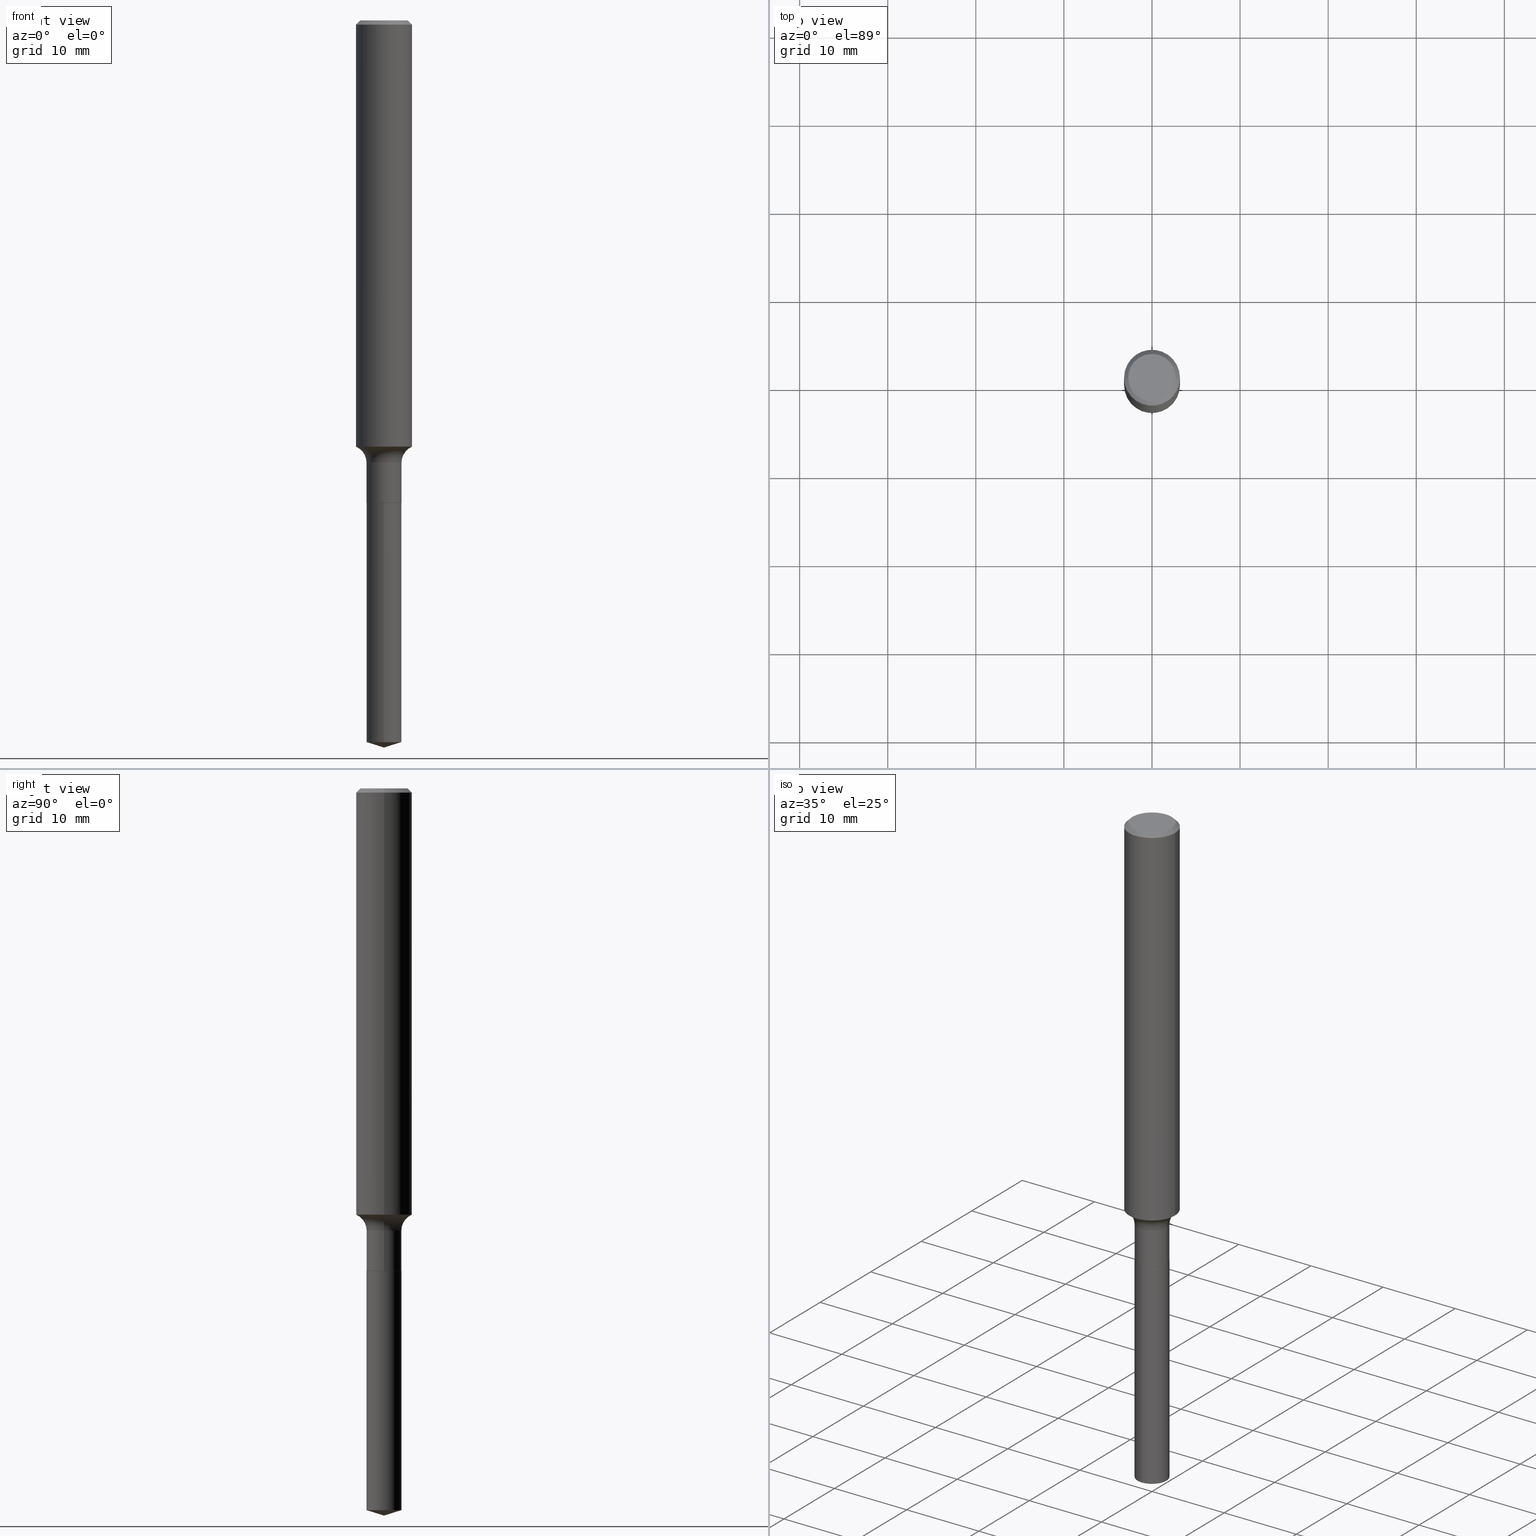
[diagram: canonical four-view strip — front | top / right | iso, engineering-drawing reading convention]
A machine part, canonical four-view strip (front | top / right | iso — engineering-drawing reading convention). The complete STEP part file that produces these views, byte-faithful:
ISO-10303-21;
HEADER;
FILE_DESCRIPTION (( 'STEP AP203' ),
    '1' );
FILE_NAME ('51585.STEP',
    '2024-04-19T13:03:35',
    ( '' ),
    ( '' ),
    'SwSTEP 2.0',
    'SolidWorks 2023',
    '' );
FILE_SCHEMA (( 'CONFIG_CONTROL_DESIGN' ));
ENDSEC;

DATA;
#1 = AXIS2_PLACEMENT_3D ( 'NONE', #400, #64, #135 ) ;
#2 = APPROVAL_PERSON_ORGANIZATION ( #399, #448, #442 ) ;
#3 = LINE ( 'NONE', #342, #293 ) ;
#4 = ORIENTED_EDGE ( 'NONE', *, *, #213, .T. ) ;
#5 = ADVANCED_FACE ( 'NONE', ( #488 ), #480, .T. ) ;
#6 = DIRECTION ( 'NONE',  ( -2.445358252114275326E-29, 3.491639658564965907E-15, 1.000000000000000000 ) ) ;
#7 = ORIENTED_EDGE ( 'NONE', *, *, #40, .F. ) ;
#8 = CIRCLE ( 'NONE', #402, 0.07809999999999997500 ) ;
#9 = DIMENSIONAL_EXPONENTS ( 1.000000000000000000, 0.000000000000000000, 0.000000000000000000, 0.000000000000000000, 0.000000000000000000, 0.000000000000000000, 0.000000000000000000 ) ;
#10 = ORIENTED_EDGE ( 'NONE', *, *, #440, .T. ) ;
#11 = CARTESIAN_POINT ( 'NONE',  ( 4.833713642305540959E-29, -6.901262014357360854E-15, -1.976599999999999913 ) ) ;
#12 = CARTESIAN_POINT ( 'NONE',  ( -0.07760000000000000231, -6.974301672689643584E-15, -2.156200000000000561 ) ) ;
#13 = ORIENTED_EDGE ( 'NONE', *, *, #23, .T. ) ;
#14 = DIRECTION ( 'NONE',  ( -1.000000000000000000, 6.982962677686266711E-15, 0.000000000000000000 ) ) ;
#15 = PLANE ( 'NONE',  #382 ) ;
#16 = DIRECTION ( 'NONE',  ( -2.445468806185136597E-29, 3.491481338843145583E-15, 1.000000000000000000 ) ) ;
#17 = EDGE_LOOP ( 'NONE', ( #275, #466, #384, #459 ) ) ;
#18 = CIRCLE ( 'NONE', #150, 0.1250000000000000000 ) ;
#19 = CC_DESIGN_SECURITY_CLASSIFICATION ( #109, ( #151 ) ) ;
#20 = DIRECTION ( 'NONE',  ( -0.7071067811864267805, 7.493145998869918709E-15, 0.7071067811866682540 ) ) ;
#21 = LINE ( 'NONE', #430, #108 ) ;
#22 = ORIENTED_EDGE ( 'NONE', *, *, #387, .F. ) ;
#23 = EDGE_CURVE ( 'NONE', #305, #56, #152, .T. ) ;
#24 = FACE_OUTER_BOUND ( 'NONE', #339, .T. ) ;
#25 = EDGE_CURVE ( 'NONE', #192, #204, #28, .T. ) ;
#26 = PERSON_AND_ORGANIZATION_ROLE ( 'creator' ) ;
#27 = CARTESIAN_POINT ( 'NONE',  ( -0.07809999999999997500, -6.658990291622127289E-15, -1.976599999999999913 ) ) ;
#28 = CIRCLE ( 'NONE', #287, 0.07809999999999997500 ) ;
#29 = AXIS2_PLACEMENT_3D ( 'NONE', #96, #244, #170 ) ;
#30 = CALENDAR_DATE ( 2024, 19, 4 ) ;
#31 = ORGANIZATION ( 'UNSPECIFIED', 'UNSPECIFIED', '' ) ;
#32 = ADVANCED_FACE ( 'NONE', ( #462 ), #80, .F. ) ;
#33 = PERSON_AND_ORGANIZATION_ROLE ( 'creator' ) ;
#34 = CARTESIAN_POINT ( 'NONE',  ( 5.272919839896393076E-29, -7.528332062813591757E-15, -2.156200000000000561 ) ) ;
#35 = COORDINATED_UNIVERSAL_TIME_OFFSET ( 5, 0, .BEHIND. ) ;
#36 = CC_DESIGN_PERSON_AND_ORGANIZATION_ASSIGNMENT ( #332, #292, ( #151 ) ) ;
#37 = PRODUCT ( '51585', '51585', '', ( #405 ) ) ;
#38 = DATE_AND_TIME ( #30, #137 ) ;
#39 = VECTOR ( 'NONE', #476, 39.37007874015748143 ) ;
#40 = EDGE_CURVE ( 'NONE', #317, #228, #450, .T. ) ;
#41 = EDGE_CURVE ( 'NONE', #53, #354, #419, .T. ) ;
#42 = ORIENTED_EDGE ( 'NONE', *, *, #341, .T. ) ;
#43 = CARTESIAN_POINT ( 'NONE',  ( 3.182012767528659158E-46, -4.543070911265533518E-32, -1.301187224094062675E-17 ) ) ;
#44 = ORIENTED_EDGE ( 'NONE', *, *, #86, .F. ) ;
#45 = FACE_OUTER_BOUND ( 'NONE', #366, .T. ) ;
#46 = ORIENTED_EDGE ( 'NONE', *, *, #145, .F. ) ;
#47 = DIRECTION ( 'NONE',  ( 1.000000000000000000, -6.982962677686262766E-15, 0.000000000000000000 ) ) ;
#48 = ORIENTED_EDGE ( 'NONE', *, *, #335, .T. ) ;
#49 = ORIENTED_EDGE ( 'NONE', *, *, #175, .T. ) ;
#50 = CARTESIAN_POINT ( 'NONE',  ( 7.947895253310916415E-29, -1.134714615236776256E-14, -3.250000000000000000 ) ) ;
#51 = EDGE_CURVE ( 'NONE', #381, #456, #3, .T. ) ;
#52 = DIRECTION ( 'NONE',  ( -6.982962677686265133E-15, -1.000000000000000000, 0.000000000000000000 ) ) ;
#53 = VERTEX_POINT ( 'NONE', #374 ) ;
#54 = APPROVAL ( #71, 'UNSPECIFIED' ) ;
#55 = DIRECTION ( 'NONE',  ( -2.445358252114275326E-29, 3.491639658564965907E-15, 1.000000000000000000 ) ) ;
#56 = VERTEX_POINT ( 'NONE', #115 ) ;
#57 = DIRECTION ( 'NONE',  ( 1.000000000000000000, -6.982962677686260400E-15, 0.000000000000000000 ) ) ;
#58 = DIRECTION ( 'NONE',  ( 1.000000000000000000, -6.982962677686262766E-15, 0.000000000000000000 ) ) ;
#59 = ORIENTED_EDGE ( 'NONE', *, *, #25, .T. ) ;
#60 = CIRCLE ( 'NONE', #445, 0.07810000000000000275 ) ;
#61 = TOROIDAL_SURFACE ( 'NONE', #176, 0.1561000000000000165, 0.07800000000000006928 ) ;
#62 = FACE_OUTER_BOUND ( 'NONE', #343, .T. ) ;
#63 = ADVANCED_FACE ( 'NONE', ( #276 ), #237, .F. ) ;
#64 = DIRECTION ( 'NONE',  ( -6.982962677686266711E-15, -1.000000000000000000, 3.491481338843145583E-15 ) ) ;
#65 = CARTESIAN_POINT ( 'NONE',  ( -0.1250000000000001388, 8.881784197001262184E-16, -6.148668862818638533E-30 ) ) ;
#66 = DIRECTION ( 'NONE',  ( -6.982962677686265133E-15, -1.000000000000000000, 3.497884755011860410E-15 ) ) ;
#67 = PERSON_AND_ORGANIZATION ( #261, #31 ) ;
#68 = DIRECTION ( 'NONE',  ( 1.000000000000000000, -6.982962677686266711E-15, 4.876176775795935793E-29 ) ) ;
#69 = CLOSED_SHELL ( 'NONE', ( #348, #121, #420, #63, #368, #75, #472, #233, #225, #32, #117, #485 ) ) ;
#70 = CALENDAR_DATE ( 2024, 19, 4 ) ;
#71 = APPROVAL_STATUS ( 'not_yet_approved' ) ;
#72 = APPROVAL_DATE_TIME ( #259, #448 ) ;
#73 = DIRECTION ( 'NONE',  ( -2.445468806185136597E-29, 3.491481338843145583E-15, 1.000000000000000000 ) ) ;
#74 = PERSON_AND_ORGANIZATION ( #261, #31 ) ;
#75 = ADVANCED_FACE ( 'NONE', ( #45 ), #344, .T. ) ;
#76 = CIRCLE ( 'NONE', #187, 0.07810000000000000275 ) ;
#77 = CC_DESIGN_PERSON_AND_ORGANIZATION_ASSIGNMENT ( #221, #106, ( #37 ) ) ;
#78 = DIRECTION ( 'NONE',  ( -6.659769872151632089E-15, -0.9537169507482267106, 0.3007057995042733411 ) ) ;
#79 = DIRECTION ( 'NONE',  ( -2.445468806185136597E-29, 3.491481338843145583E-15, 1.000000000000000000 ) ) ;
#80 = PLANE ( 'NONE',  #308 ) ;
#81 = AXIS2_PLACEMENT_3D ( 'NONE', #304, #453, #190 ) ;
#82 = APPROVAL_PERSON_ORGANIZATION ( #256, #389, #367 ) ;
#83 = CARTESIAN_POINT ( 'NONE',  ( 4.658785000533512367E-29, -6.651510274800731204E-15, -1.905068258793735092 ) ) ;
#84 = ORIENTED_EDGE ( 'NONE', *, *, #437, .F. ) ;
#85 = ORIENTED_EDGE ( 'NONE', *, *, #379, .T. ) ;
#86 = EDGE_CURVE ( 'NONE', #53, #381, #410, .T. ) ;
#87 = CARTESIAN_POINT ( 'NONE',  ( 5.272919839896391955E-29, -7.528332062813591757E-15, -2.156200000000000561 ) ) ;
#88 = CARTESIAN_POINT ( 'NONE',  ( 0.000000000000000000, 0.000000000000000000, 0.000000000000000000 ) ) ;
#89 = VECTOR ( 'NONE', #458, 39.37007874015748143 ) ;
#90 = CC_DESIGN_PERSON_AND_ORGANIZATION_ASSIGNMENT ( #365, #26, ( #206 ) ) ;
#91 = VERTEX_POINT ( 'NONE', #273 ) ;
#92 = DIRECTION ( 'NONE',  ( 1.000000000000000000, -6.982962677686265922E-15, 4.876176775795935793E-29 ) ) ;
#93 = DIRECTION ( 'NONE',  ( -2.445468806185136597E-29, 3.491481338843145583E-15, 1.000000000000000000 ) ) ;
#94 = ORIENTED_EDGE ( 'NONE', *, *, #51, .F. ) ;
#95 = LINE ( 'NONE', #475, #208 ) ;
#96 = CARTESIAN_POINT ( 'NONE',  ( 7.887436151578645056E-29, -1.126150646944370248E-14, -3.225375164588551780 ) ) ;
#97 = EDGE_CURVE ( 'NONE', #91, #451, #141, .T. ) ;
#98 = ORIENTED_EDGE ( 'NONE', *, *, #175, .F. ) ;
#99 = CARTESIAN_POINT ( 'NONE',  ( 4.585254011597165626E-31, -6.546527510330947764E-17, -0.01875000000000014155 ) ) ;
#100 = CC_DESIGN_PERSON_AND_ORGANIZATION_ASSIGNMENT ( #67, #251, ( #109 ) ) ;
#101 = CARTESIAN_POINT ( 'NONE',  ( 5.271697105493300275E-29, -7.526586322144169465E-15, -2.155700000000000394 ) ) ;
#102 = CARTESIAN_POINT ( 'NONE',  ( -5.453693851272445827E-16, -0.07810000000000752451, -2.156200000000000117 ) ) ;
#103 = AXIS2_PLACEMENT_3D ( 'NONE', #239, #155, #118 ) ;
#104 = AXIS2_PLACEMENT_3D ( 'NONE', #361, #464, #57 ) ;
#105 = CARTESIAN_POINT ( 'NONE',  ( 5.549338766287173480E-16, 0.07809999999998876175, -3.225375164588551780 ) ) ;
#106 = PERSON_AND_ORGANIZATION_ROLE ( 'design_owner' ) ;
#107 = DIRECTION ( 'NONE',  ( -2.445358252114275326E-29, 3.491639658564965907E-15, 1.000000000000000000 ) ) ;
#108 = VECTOR ( 'NONE', #395, 39.37007874015748143 ) ;
#109 = SECURITY_CLASSIFICATION ( '', '', #329 ) ;
#110 = EDGE_CURVE ( 'NONE', #378, #204, #345, .T. ) ;
#111 = EDGE_LOOP ( 'NONE', ( #269, #164, #373, #85 ) ) ;
#112 = APPROVAL_DATE_TIME ( #297, #389 ) ;
#113 = CIRCLE ( 'NONE', #435, 0.07810000000000000275 ) ;
#114 = EDGE_LOOP ( 'NONE', ( #299, #153, #243 ) ) ;
#115 = CARTESIAN_POINT ( 'NONE',  ( -5.453693851272187475E-16, -0.07810000000001129927, -3.225375164588551780 ) ) ;
#116 = ORIENTED_EDGE ( 'NONE', *, *, #25, .F. ) ;
#117 = ADVANCED_FACE ( 'NONE', ( #491 ), #252, .F. ) ;
#118 = DIRECTION ( 'NONE',  ( 1.000000000000000000, -6.982962677686266711E-15, 4.877714189860772023E-29 ) ) ;
#119 = VECTOR ( 'NONE', #20, 39.37007874015748143 ) ;
#120 = EDGE_LOOP ( 'NONE', ( #321, #474, #330, #415 ) ) ;
#121 = ADVANCED_FACE ( 'NONE', ( #62 ), #270, .T. ) ;
#122 = DIRECTION ( 'NONE',  ( 1.000000000000000000, -6.982962677686267499E-15, 4.876176775795936353E-29 ) ) ;
#123 = DIRECTION ( 'NONE',  ( 1.000000000000000000, -6.982962677686267499E-15, 4.876176775795936353E-29 ) ) ;
#124 = ORIENTED_EDGE ( 'NONE', *, *, #314, .T. ) ;
#125 =( NAMED_UNIT ( * ) PLANE_ANGLE_UNIT ( ) SI_UNIT ( $, .RADIAN. ) );
#126 = CIRCLE ( 'NONE', #1, 0.07800000000000006928 ) ;
#127 = DIRECTION ( 'NONE',  ( -2.445468806185136597E-29, 3.491481338843145583E-15, 1.000000000000000000 ) ) ;
#128 = ORIENTED_EDGE ( 'NONE', *, *, #355, .T. ) ;
#129 = CARTESIAN_POINT ( 'NONE',  ( -0.1250000000000000000, -2.470309355251892181E-15, -0.01875000000000014155 ) ) ;
#130 = DIRECTION ( 'NONE',  ( -2.445358252114275326E-29, 3.491639658564965907E-15, 1.000000000000000000 ) ) ;
#131 = ORIENTED_EDGE ( 'NONE', *, *, #303, .T. ) ;
#132 = CARTESIAN_POINT ( 'NONE',  ( 5.272919839896391955E-29, -7.528332062813591757E-15, -2.156200000000000561 ) ) ;
#133 = CARTESIAN_POINT ( 'NONE',  ( -5.453693851272445827E-16, -0.07810000000000752451, -2.156200000000000117 ) ) ;
#134 =( LENGTH_UNIT ( ) NAMED_UNIT ( * ) SI_UNIT ( $, .METRE. ) );
#135 = DIRECTION ( 'NONE',  ( 1.000000000000000000, -6.982962677686264344E-15, 0.000000000000000000 ) ) ;
#136 = AXIS2_PLACEMENT_3D ( 'NONE', #409, #249, #443 ) ;
#137 = LOCAL_TIME ( 9, 3, 35.00000000000000000, #218 ) ;
#138 = CARTESIAN_POINT ( 'NONE',  ( 5.272919839896391955E-29, -7.528332062813591757E-15, -2.156200000000000561 ) ) ;
#139 = COORDINATED_UNIVERSAL_TIME_OFFSET ( 5, 0, .BEHIND. ) ;
#140 = COORDINATED_UNIVERSAL_TIME_OFFSET ( 5, 0, .BEHIND. ) ;
#141 = CIRCLE ( 'NONE', #369, 0.1250000000000002776 ) ;
#142 = AXIS2_PLACEMENT_3D ( 'NONE', #359, #421, #238 ) ;
#143 = APPROVAL_ROLE ( '' ) ;
#144 = MANIFOLD_SOLID_BREP ( 'Body-Move/Copy2[1]', #215 ) ;
#145 = EDGE_CURVE ( 'NONE', #56, #274, #171, .T. ) ;
#146 = COORDINATED_UNIVERSAL_TIME_OFFSET ( 5, 0, .BEHIND. ) ;
#147 = DIRECTION ( 'NONE',  ( -2.445468806185136597E-29, 3.491481338843145583E-15, 1.000000000000000000 ) ) ;
#148 = ORIENTED_EDGE ( 'NONE', *, *, #97, .F. ) ;
#149 = ORIENTED_EDGE ( 'NONE', *, *, #110, .T. ) ;
#150 = AXIS2_PLACEMENT_3D ( 'NONE', #191, #79, #377 ) ;
#151 = PRODUCT_DEFINITION_FORMATION_WITH_SPECIFIED_SOURCE ( 'ANY', '', #37, .NOT_KNOWN. ) ;
#152 = LINE ( 'NONE', #160, #338 ) ;
#153 = ORIENTED_EDGE ( 'NONE', *, *, #426, .T. ) ;
#154 = CARTESIAN_POINT ( 'NONE',  ( 0.07810000000000000275, -8.071955707271467690E-15, -2.155700000000000394 ) ) ;
#155 = DIRECTION ( 'NONE',  ( -2.445468806185136597E-29, 3.491481338843145583E-15, 1.000000000000000000 ) ) ;
#156 = ORIENTED_EDGE ( 'NONE', *, *, #86, .T. ) ;
#157 =( GEOMETRIC_REPRESENTATION_CONTEXT ( 3 ) GLOBAL_UNCERTAINTY_ASSIGNED_CONTEXT ( ( #396 ) ) GLOBAL_UNIT_ASSIGNED_CONTEXT ( ( #429, #125, #385 ) ) REPRESENTATION_CONTEXT ( 'NONE', 'WORKASPACE' ) );
#158 = ORIENTED_EDGE ( 'NONE', *, *, #165, .T. ) ;
#159 = EDGE_CURVE ( 'NONE', #210, #265, #207, .T. ) ;
#160 = CARTESIAN_POINT ( 'NONE',  ( 7.947414319371396911E-29, -1.134782889033613979E-14, -3.250000000000000000 ) ) ;
#161 = ORIENTED_EDGE ( 'NONE', *, *, #220, .F. ) ;
#162 = DIRECTION ( 'NONE',  ( -2.445468806185136597E-29, 3.491481338843145583E-15, 1.000000000000000000 ) ) ;
#163 = DIRECTION ( 'NONE',  ( -2.445358252114275326E-29, 3.491639658564965907E-15, 1.000000000000000000 ) ) ;
#164 = ORIENTED_EDGE ( 'NONE', *, *, #404, .F. ) ;
#165 = EDGE_CURVE ( 'NONE', #56, #317, #60, .T. ) ;
#166 = FACE_OUTER_BOUND ( 'NONE', #17, .T. ) ;
#167 = AXIS2_PLACEMENT_3D ( 'NONE', #232, #163, #289 ) ;
#168 = FACE_OUTER_BOUND ( 'NONE', #194, .T. ) ;
#169 = LENGTH_MEASURE_WITH_UNIT ( LENGTH_MEASURE( 0.02539999999999999897 ), #134 );
#170 = DIRECTION ( 'NONE',  ( -6.982962677686265133E-15, -1.000000000000000000, 0.000000000000000000 ) ) ;
#171 = LINE ( 'NONE', #133, #260 ) ;
#172 = CARTESIAN_POINT ( 'NONE',  ( 4.585254011597165626E-31, -6.546527510330947764E-17, -0.01875000000000014155 ) ) ;
#173 = SHAPE_DEFINITION_REPRESENTATION ( #331, #460 ) ;
#174 = AXIS2_PLACEMENT_3D ( 'NONE', #34, #73, #198 ) ;
#175 = EDGE_CURVE ( 'NONE', #451, #204, #455, .T. ) ;
#176 = AXIS2_PLACEMENT_3D ( 'NONE', #11, #162, #390 ) ;
#177 = CC_DESIGN_APPROVAL ( #54, ( #206 ) ) ;
#178 = APPLICATION_PROTOCOL_DEFINITION ( 'international standard', 'config_control_design', 1994, #352 ) ;
#179 = CYLINDRICAL_SURFACE ( 'NONE', #340, 0.07809999999999997500 ) ;
#180 = PERSON_AND_ORGANIZATION ( #261, #31 ) ;
#181 = ADVANCED_FACE ( 'NONE', ( #296 ), #408, .T. ) ;
#182 = CC_DESIGN_DATE_AND_TIME_ASSIGNMENT ( #401, #295, ( #109 ) ) ;
#183 = AXIS2_PLACEMENT_3D ( 'NONE', #99, #202, #14 ) ;
#184 = CONICAL_SURFACE ( 'NONE', #278, 124.8659371009152892, 1.265363707695892126 ) ;
#185 = DATE_TIME_ROLE ( 'creation_date' ) ;
#186 = ORIENTED_EDGE ( 'NONE', *, *, #213, .F. ) ;
#187 = AXIS2_PLACEMENT_3D ( 'NONE', #138, #55, #398 ) ;
#188 = EDGE_LOOP ( 'NONE', ( #7, #48, #351, #358 ) ) ;
#189 = DIRECTION ( 'NONE',  ( 1.000000000000000000, -6.982962677686266711E-15, 4.877714189860772023E-29 ) ) ;
#190 = DIRECTION ( 'NONE',  ( 1.000000000000000000, -6.982962677686267499E-15, 4.883557194083113462E-29 ) ) ;
#191 = CARTESIAN_POINT ( 'NONE',  ( 4.585254011597165626E-31, -6.546527510330947764E-17, -0.01875000000000014155 ) ) ;
#192 = VERTEX_POINT ( 'NONE', #391 ) ;
#193 = DIRECTION ( 'NONE',  ( -2.445468806185136597E-29, 3.491481338843145583E-15, 1.000000000000000000 ) ) ;
#194 = EDGE_LOOP ( 'NONE', ( #226, #13, #346 ) ) ;
#195 = DIRECTION ( 'NONE',  ( 1.000000000000000000, -6.982962677686260400E-15, 0.000000000000000000 ) ) ;
#196 = DIRECTION ( 'NONE',  ( -2.445468806185136597E-29, 3.491481338843145583E-15, 1.000000000000000000 ) ) ;
#197 = AXIS2_PLACEMENT_3D ( 'NONE', #425, #432, #92 ) ;
#198 = DIRECTION ( 'NONE',  ( 1.000000000000000000, -6.982962677686260400E-15, 0.000000000000000000 ) ) ;
#199 = ORIENTED_EDGE ( 'NONE', *, *, #322, .F. ) ;
#200 = LINE ( 'NONE', #65, #487 ) ;
#201 = EDGE_LOOP ( 'NONE', ( #98, #148, #4, #59 ) ) ;
#202 = DIRECTION ( 'NONE',  ( 2.445468806185136597E-29, -3.491481338843145583E-15, -1.000000000000000000 ) ) ;
#203 = CARTESIAN_POINT ( 'NONE',  ( 4.658785000533512367E-29, -6.651510274800731204E-15, -1.905068258793735092 ) ) ;
#204 = VERTEX_POINT ( 'NONE', #27 ) ;
#205 = DIRECTION ( 'NONE',  ( -2.445468806185136597E-29, 3.491481338843145583E-15, 1.000000000000000000 ) ) ;
#206 = PRODUCT_DEFINITION ( 'UNKNOWN', '', #151, #467 ) ;
#207 = CIRCLE ( 'NONE', #174, 0.07760000000000000231 ) ;
#208 = VECTOR ( 'NONE', #319, 39.37007874015748143 ) ;
#209 = CARTESIAN_POINT ( 'NONE',  ( 7.947414319371394669E-29, -1.134782889033613821E-14, -3.250000000000000000 ) ) ;
#210 = VERTEX_POINT ( 'NONE', #353 ) ;
#211 = FACE_OUTER_BOUND ( 'NONE', #111, .T. ) ;
#212 = LINE ( 'NONE', #50, #418 ) ;
#213 = EDGE_CURVE ( 'NONE', #91, #192, #126, .T. ) ;
#214 = DIRECTION ( 'NONE',  ( 1.000000000000000000, -6.982962677686266711E-15, 0.000000000000000000 ) ) ;
#215 = CLOSED_SHELL ( 'NONE', ( #181, #5, #298, #253, #406 ) ) ;
#216 = FACE_OUTER_BOUND ( 'NONE', #188, .T. ) ;
#217 = CIRCLE ( 'NONE', #469, 0.07760000000000000231 ) ;
#218 = COORDINATED_UNIVERSAL_TIME_OFFSET ( 5, 0, .BEHIND. ) ;
#219 = DIRECTION ( 'NONE',  ( 1.000000000000000000, -6.982962677686266711E-15, 0.000000000000000000 ) ) ;
#220 = EDGE_CURVE ( 'NONE', #451, #91, #481, .T. ) ;
#221 = PERSON_AND_ORGANIZATION ( #261, #31 ) ;
#222 = FACE_OUTER_BOUND ( 'NONE', #392, .T. ) ;
#223 = APPROVAL_DATE_TIME ( #38, #54 ) ;
#224 = LOCAL_TIME ( 9, 3, 35.00000000000000000, #139 ) ;
#225 = ADVANCED_FACE ( 'NONE', ( #211 ), #424, .T. ) ;
#226 = ORIENTED_EDGE ( 'NONE', *, *, #426, .F. ) ;
#227 = CARTESIAN_POINT ( 'NONE',  ( 4.833713642305540959E-29, -6.901262014357360854E-15, -1.976599999999999913 ) ) ;
#228 = VERTEX_POINT ( 'NONE', #291 ) ;
#229 = CIRCLE ( 'NONE', #364, 0.1250000000000000000 ) ;
#230 = CARTESIAN_POINT ( 'NONE',  ( 5.549338766286909212E-16, 0.07809999999999246711, -2.156200000000000561 ) ) ;
#231 = CARTESIAN_POINT ( 'NONE',  ( -0.07810000000000000275, -6.658990291622127289E-15, -2.155700000000000394 ) ) ;
#232 = CARTESIAN_POINT ( 'NONE',  ( 5.272919839896391955E-29, -7.528332062813591757E-15, -2.156200000000000561 ) ) ;
#233 = ADVANCED_FACE ( 'NONE', ( #436 ), #438, .T. ) ;
#234 = DIRECTION ( 'NONE',  ( -2.445468806185136597E-29, 3.491481338843145583E-15, 1.000000000000000000 ) ) ;
#235 = ORIENTED_EDGE ( 'NONE', *, *, #268, .F. ) ;
#236 = DIRECTION ( 'NONE',  ( 2.438088387897960049E-29, -3.491481338843145188E-15, -1.000000000000000000 ) ) ;
#237 = TOROIDAL_SURFACE ( 'NONE', #81, 0.1561000000000000165, 0.07800000000000006928 ) ;
#238 = DIRECTION ( 'NONE',  ( 1.000000000000000000, -6.982962677686266711E-15, 4.876176775795935793E-29 ) ) ;
#239 = CARTESIAN_POINT ( 'NONE',  ( 6.364025535057318316E-46, -9.086141822531067035E-32, -2.602374448188125350E-17 ) ) ;
#240 = AXIS2_PLACEMENT_3D ( 'NONE', #465, #127, #68 ) ;
#241 = CIRCLE ( 'NONE', #294, 0.1062499999999999972 ) ;
#242 = CARTESIAN_POINT ( 'NONE',  ( -8.832629423757390012E-28, 1.261186407686073387E-13, 36.12007874015748143 ) ) ;
#243 = ORIENTED_EDGE ( 'NONE', *, *, #165, .F. ) ;
#244 = DIRECTION ( 'NONE',  ( -2.445358252114275326E-29, 3.491639658564965907E-15, 1.000000000000000000 ) ) ;
#245 = ORIENTED_EDGE ( 'NONE', *, *, #40, .T. ) ;
#246 = CARTESIAN_POINT ( 'NONE',  ( -0.1250000000000003331, -5.763331855100603605E-15, -1.905068258793735092 ) ) ;
#247 = CARTESIAN_POINT ( 'NONE',  ( 0.1250000000000000000, -9.383356098140928781E-16, -0.01875000000000014155 ) ) ;
#248 = DIRECTION ( 'NONE',  ( -2.445468806185136877E-29, 3.491481338843145188E-15, 1.000000000000000000 ) ) ;
#249 = DIRECTION ( 'NONE',  ( 0.000000000000000000, 0.000000000000000000, 1.000000000000000000 ) ) ;
#250 = DIRECTION ( 'NONE',  ( -2.445358252114275326E-29, 3.491639658564965907E-15, 1.000000000000000000 ) ) ;
#251 = PERSON_AND_ORGANIZATION_ROLE ( 'classification_officer' ) ;
#252 = PLANE ( 'NONE',  #197 ) ;
#253 = ADVANCED_FACE ( 'NONE', ( #216 ), #427, .T. ) ;
#254 = AXIS2_PLACEMENT_3D ( 'NONE', #203, #16, #58 ) ;
#255 = APPROVAL_STATUS ( 'not_yet_approved' ) ;
#256 = PERSON_AND_ORGANIZATION ( #261, #31 ) ;
#257 = ORIENTED_EDGE ( 'NONE', *, *, #159, .F. ) ;
#258 = CARTESIAN_POINT ( 'NONE',  ( -0.1561000000000000165, -5.792104803835844346E-15, -1.976599999999999913 ) ) ;
#259 = DATE_AND_TIME ( #70, #272 ) ;
#260 = VECTOR ( 'NONE', #397, 39.37007874015748143 ) ;
#261 = PERSON ( 'UNSPECIFIED', 'UNSPECIFIED', 'UNSPECIFIED', ('UNSPECIFIED'), ('UNSPECIFIED'), ('UNSPECIFIED') ) ;
#262 = AXIS2_PLACEMENT_3D ( 'NONE', #258, #350, #490 ) ;
#263 = APPLICATION_CONTEXT ( 'configuration controlled 3d designs of mechanical parts and assemblies' ) ;
#264 = ORIENTED_EDGE ( 'NONE', *, *, #379, .F. ) ;
#265 = VERTEX_POINT ( 'NONE', #12 ) ;
#266 = CARTESIAN_POINT ( 'NONE',  ( 6.364025535057318316E-46, -9.086141822531067035E-32, -2.602374448188125350E-17 ) ) ;
#267 = DIRECTION ( 'NONE',  ( -2.445358252114275326E-29, 3.491639658564966301E-15, 1.000000000000000000 ) ) ;
#268 = EDGE_CURVE ( 'NONE', #274, #228, #113, .T. ) ;
#269 = ORIENTED_EDGE ( 'NONE', *, *, #41, .F. ) ;
#270 = CONICAL_SURFACE ( 'NONE', #183, 0.1250000000000000000, 0.7853981633974453924 ) ;
#271 = AXIS2_PLACEMENT_3D ( 'NONE', #320, #283, #214 ) ;
#272 = LOCAL_TIME ( 9, 3, 35.00000000000000000, #35 ) ;
#273 = CARTESIAN_POINT ( 'NONE',  ( 0.1250000000000003331, -7.524380609511516120E-15, -1.905068258793735092 ) ) ;
#274 = VERTEX_POINT ( 'NONE', #102 ) ;
#275 = ORIENTED_EDGE ( 'NONE', *, *, #97, .T. ) ;
#276 = FACE_OUTER_BOUND ( 'NONE', #337, .T. ) ;
#277 = ORIENTED_EDGE ( 'NONE', *, *, #404, .T. ) ;
#278 = AXIS2_PLACEMENT_3D ( 'NONE', #242, #107, #386 ) ;
#279 = LOCAL_TIME ( 9, 3, 35.00000000000000000, #146 ) ;
#280 = DIRECTION ( 'NONE',  ( 1.000000000000000000, -6.982962677686269077E-15, 0.000000000000000000 ) ) ;
#281 = ORIENTED_EDGE ( 'NONE', *, *, #220, .T. ) ;
#282 = CARTESIAN_POINT ( 'NONE',  ( -0.07760000000000000231, -6.976950899863754785E-15, -2.156200000000000561 ) ) ;
#283 = DIRECTION ( 'NONE',  ( -2.445468806185136597E-29, 3.491481338843145583E-15, 1.000000000000000000 ) ) ;
#284 = ORIENTED_EDGE ( 'NONE', *, *, #110, .F. ) ;
#285 = DIRECTION ( 'NONE',  ( -2.445468806185136597E-29, 3.491481338843145583E-15, 1.000000000000000000 ) ) ;
#286 = EDGE_CURVE ( 'NONE', #204, #192, #8, .T. ) ;
#287 = AXIS2_PLACEMENT_3D ( 'NONE', #227, #193, #416 ) ;
#288 = AXIS2_PLACEMENT_3D ( 'NONE', #101, #205, #471 ) ;
#289 = DIRECTION ( 'NONE',  ( -6.982962677686265133E-15, -1.000000000000000000, 3.497884755011860410E-15 ) ) ;
#290 = CALENDAR_DATE ( 2024, 19, 4 ) ;
#291 = CARTESIAN_POINT ( 'NONE',  ( 5.549338766287172494E-16, 0.07809999999999246711, -2.156200000000000561 ) ) ;
#292 = PERSON_AND_ORGANIZATION_ROLE ( 'design_supplier' ) ;
#293 = VECTOR ( 'NONE', #376, 39.37007874015748143 ) ;
#294 = AXIS2_PLACEMENT_3D ( 'NONE', #266, #414, #189 ) ;
#295 = DATE_TIME_ROLE ( 'classification_date' ) ;
#296 = FACE_OUTER_BOUND ( 'NONE', #375, .T. ) ;
#297 = DATE_AND_TIME ( #334, #279 ) ;
#298 = ADVANCED_FACE ( 'NONE', ( #168 ), #184, .T. ) ;
#299 = ORIENTED_EDGE ( 'NONE', *, *, #23, .F. ) ;
#300 = PRODUCT_RELATED_PRODUCT_CATEGORY ( 'detail', '', ( #37 ) ) ;
#301 = VECTOR ( 'NONE', #422, 39.37007874015748143 ) ;
#302 = CIRCLE ( 'NONE', #29, 0.07810000000000000275 ) ;
#303 = EDGE_CURVE ( 'NONE', #228, #274, #76, .T. ) ;
#304 = CARTESIAN_POINT ( 'NONE',  ( 4.833713642305540959E-29, -6.901262014357360854E-15, -1.976599999999999913 ) ) ;
#305 = VERTEX_POINT ( 'NONE', #209 ) ;
#306 = CARTESIAN_POINT ( 'NONE',  ( 0.1250000000000000000, -9.230275248247509846E-16, -0.01875000000000014155 ) ) ;
#307 = ORIENTED_EDGE ( 'NONE', *, *, #440, .F. ) ;
#308 = AXIS2_PLACEMENT_3D ( 'NONE', #43, #236, #380 ) ;
#309 = DIRECTION ( 'NONE',  ( -2.445468806185136597E-29, 3.491481338843145583E-15, 1.000000000000000000 ) ) ;
#310 = CARTESIAN_POINT ( 'NONE',  ( -0.07809999999999997500, 5.549338766286380675E-16, -3.841688305489080574E-30 ) ) ;
#311 = EDGE_LOOP ( 'NONE', ( #257, #22 ) ) ;
#312 = CARTESIAN_POINT ( 'NONE',  ( 7.887436151578645056E-29, -1.126150646944370248E-14, -3.225375164588551780 ) ) ;
#313 = ORIENTED_EDGE ( 'NONE', *, *, #454, .F. ) ;
#314 = EDGE_CURVE ( 'NONE', #378, #388, #356, .T. ) ;
#315 = FACE_OUTER_BOUND ( 'NONE', #120, .T. ) ;
#316 = DIRECTION ( 'NONE',  ( 2.445468806185136597E-29, -3.491481338843145583E-15, -1.000000000000000000 ) ) ;
#317 = VERTEX_POINT ( 'NONE', #105 ) ;
#318 = VECTOR ( 'NONE', #267, 39.37007874015748143 ) ;
#319 = DIRECTION ( 'NONE',  ( 0.7071067811864267805, -2.468850131080992517E-15, 0.7071067811866682540 ) ) ;
#320 = CARTESIAN_POINT ( 'NONE',  ( 5.271697105493300275E-29, -7.526586322144169465E-15, -2.155700000000000394 ) ) ;
#321 = ORIENTED_EDGE ( 'NONE', *, *, #479, .F. ) ;
#322 = EDGE_CURVE ( 'NONE', #388, #192, #21, .T. ) ;
#323 = CARTESIAN_POINT ( 'NONE',  ( 0.1250000000000001388, -8.728703347107843249E-16, 6.095220969744926748E-30 ) ) ;
#324 = DIRECTION ( 'NONE',  ( 6.982962677686265922E-15, 1.000000000000000000, -3.491639658564966301E-15 ) ) ;
#325 = DIRECTION ( 'NONE',  ( -2.445468806185136597E-29, 3.491481338843145583E-15, 1.000000000000000000 ) ) ;
#326 = AXIS2_PLACEMENT_3D ( 'NONE', #433, #316, #360 ) ;
#327 = CARTESIAN_POINT ( 'NONE',  ( 5.272919839896391955E-29, -7.528332062813591757E-15, -2.156200000000000561 ) ) ;
#328 = APPROVAL_PERSON_ORGANIZATION ( #74, #54, #143 ) ;
#329 = SECURITY_CLASSIFICATION_LEVEL ( 'unclassified' ) ;
#330 = ORIENTED_EDGE ( 'NONE', *, *, #437, .T. ) ;
#331 = PRODUCT_DEFINITION_SHAPE ( 'NONE', 'NONE',  #206 ) ;
#332 = PERSON_AND_ORGANIZATION ( #261, #31 ) ;
#333 = CIRCLE ( 'NONE', #288, 0.07810000000000000275 ) ;
#334 = CALENDAR_DATE ( 2024, 19, 4 ) ;
#335 = EDGE_CURVE ( 'NONE', #317, #56, #302, .T. ) ;
#336 = CC_DESIGN_PERSON_AND_ORGANIZATION_ASSIGNMENT ( #180, #33, ( #151 ) ) ;
#337 = EDGE_LOOP ( 'NONE', ( #161, #49, #413, #186 ) ) ;
#338 = VECTOR ( 'NONE', #78, 39.37007874015748854 ) ;
#339 = EDGE_LOOP ( 'NONE', ( #371, #428, #307, #84 ) ) ;
#340 = AXIS2_PLACEMENT_3D ( 'NONE', #411, #147, #123 ) ;
#341 = EDGE_CURVE ( 'NONE', #91, #354, #357, .T. ) ;
#342 = CARTESIAN_POINT ( 'NONE',  ( -0.1250000000000000000, 8.074050596074738982E-16, -0.01875000000000014155 ) ) ;
#343 = EDGE_LOOP ( 'NONE', ( #44, #423, #128, #94 ) ) ;
#344 = CYLINDRICAL_SURFACE ( 'NONE', #446, 0.07809999999999997500 ) ;
#345 = LINE ( 'NONE', #310, #89 ) ;
#346 = ORIENTED_EDGE ( 'NONE', *, *, #335, .F. ) ;
#347 = CONICAL_SURFACE ( 'NONE', #104, 0.07760000000000000231, 0.7853981633972775267 ) ;
#348 = ADVANCED_FACE ( 'NONE', ( #24 ), #457, .T. ) ;
#349 = FACE_OUTER_BOUND ( 'NONE', #201, .T. ) ;
#350 = DIRECTION ( 'NONE',  ( 7.105427357601001859E-15, 1.000000000000000000, -3.491481338843145583E-15 ) ) ;
#351 = ORIENTED_EDGE ( 'NONE', *, *, #145, .T. ) ;
#352 = APPLICATION_CONTEXT ( 'configuration controlled 3d designs of mechanical parts and assemblies' ) ;
#353 = CARTESIAN_POINT ( 'NONE',  ( 0.07760000000000000231, -8.070209966602046975E-15, -2.156200000000000561 ) ) ;
#354 = VERTEX_POINT ( 'NONE', #247 ) ;
#355 = EDGE_CURVE ( 'NONE', #354, #456, #229, .T. ) ;
#356 = CIRCLE ( 'NONE', #271, 0.07810000000000000275 ) ;
#357 = LINE ( 'NONE', #323, #39 ) ;
#358 = ORIENTED_EDGE ( 'NONE', *, *, #303, .F. ) ;
#359 = CARTESIAN_POINT ( 'NONE',  ( 0.000000000000000000, 0.000000000000000000, 0.000000000000000000 ) ) ;
#360 = DIRECTION ( 'NONE',  ( -1.000000000000000000, 6.982962677686266711E-15, 0.000000000000000000 ) ) ;
#361 = CARTESIAN_POINT ( 'NONE',  ( 5.272919839896393076E-29, -7.528332062813591757E-15, -2.156200000000000561 ) ) ;
#362 = DIRECTION ( 'NONE',  ( 1.000000000000000000, -6.982962677686260400E-15, 0.000000000000000000 ) ) ;
#363 = APPLICATION_PROTOCOL_DEFINITION ( 'international standard', 'config_control_design', 1994, #263 ) ;
#364 = AXIS2_PLACEMENT_3D ( 'NONE', #172, #325, #219 ) ;
#365 = PERSON_AND_ORGANIZATION ( #261, #31 ) ;
#366 = EDGE_LOOP ( 'NONE', ( #284, #124, #492, #431 ) ) ;
#367 = APPROVAL_ROLE ( '' ) ;
#368 = ADVANCED_FACE ( 'NONE', ( #222 ), #179, .T. ) ;
#369 = AXIS2_PLACEMENT_3D ( 'NONE', #83, #234, #47 ) ;
#370 = CARTESIAN_POINT ( 'NONE',  ( -0.1062499999999999972, 7.746724220558198188E-16, -2.602374448188655674E-17 ) ) ;
#371 = ORIENTED_EDGE ( 'NONE', *, *, #159, .T. ) ;
#372 = DIRECTION ( 'NONE',  ( -6.982962677686265133E-15, -1.000000000000000000, 3.500519750498698121E-15 ) ) ;
#373 = ORIENTED_EDGE ( 'NONE', *, *, #51, .T. ) ;
#374 = CARTESIAN_POINT ( 'NONE',  ( 0.1062499999999999972, -8.259777185439880671E-16, -2.602374448187577153E-17 ) ) ;
#375 = EDGE_LOOP ( 'NONE', ( #158, #245, #235, #46 ) ) ;
#376 = DIRECTION ( 'NONE',  ( -0.7071067811865454633, 2.468850131082235367E-15, -0.7071067811865495711 ) ) ;
#377 = DIRECTION ( 'NONE',  ( 1.000000000000000000, -6.982962677686266711E-15, 0.000000000000000000 ) ) ;
#378 = VERTEX_POINT ( 'NONE', #231 ) ;
#379 = EDGE_CURVE ( 'NONE', #456, #354, #18, .T. ) ;
#380 = DIRECTION ( 'NONE',  ( -1.000000000000000000, 6.982962677686265922E-15, -4.876176775795935793E-29 ) ) ;
#381 = VERTEX_POINT ( 'NONE', #370 ) ;
#382 = AXIS2_PLACEMENT_3D ( 'NONE', #87, #434, #324 ) ;
#383 = DIRECTION ( 'NONE',  ( -2.445358252114275326E-29, 3.491639658564965907E-15, 1.000000000000000000 ) ) ;
#384 = ORIENTED_EDGE ( 'NONE', *, *, #355, .F. ) ;
#385 =( NAMED_UNIT ( * ) SI_UNIT ( $, .STERADIAN. ) SOLID_ANGLE_UNIT ( ) );
#386 = DIRECTION ( 'NONE',  ( -6.982962677686265133E-15, -1.000000000000000000, 3.500519750498698121E-15 ) ) ;
#387 = EDGE_CURVE ( 'NONE', #265, #210, #217, .T. ) ;
#388 = VERTEX_POINT ( 'NONE', #154 ) ;
#389 = APPROVAL ( #489, 'UNSPECIFIED' ) ;
#390 = DIRECTION ( 'NONE',  ( 1.000000000000000000, -6.982962677686267499E-15, 4.883557194083113462E-29 ) ) ;
#391 = CARTESIAN_POINT ( 'NONE',  ( 0.07809999999999997500, -7.446631399484659079E-15, -1.976599999999999913 ) ) ;
#392 = EDGE_LOOP ( 'NONE', ( #10, #149, #116, #199 ) ) ;
#393 = LINE ( 'NONE', #282, #119 ) ;
#394 = AXIS2_PLACEMENT_3D ( 'NONE', #132, #250, #66 ) ;
#395 = DIRECTION ( 'NONE',  ( -2.445468806185136877E-29, 3.491481338843145188E-15, 1.000000000000000000 ) ) ;
#396 = UNCERTAINTY_MEASURE_WITH_UNIT (LENGTH_MEASURE( 1.000000000000000082E-05 ), #429, 'distance_accuracy_value', 'NONE');
#397 = DIRECTION ( 'NONE',  ( -2.445358252114275326E-29, 3.491639658564966301E-15, 1.000000000000000000 ) ) ;
#398 = DIRECTION ( 'NONE',  ( -6.982962677686265133E-15, -1.000000000000000000, 3.497884755011860410E-15 ) ) ;
#399 = PERSON_AND_ORGANIZATION ( #261, #31 ) ;
#400 = CARTESIAN_POINT ( 'NONE',  ( 0.1561000000000000165, -7.991302488344187125E-15, -1.976599999999999913 ) ) ;
#401 = DATE_AND_TIME ( #486, #470 ) ;
#402 = AXIS2_PLACEMENT_3D ( 'NONE', #484, #93, #280 ) ;
#403 = DATE_AND_TIME ( #290, #224 ) ;
#404 = EDGE_CURVE ( 'NONE', #381, #53, #241, .T. ) ;
#405 = MECHANICAL_CONTEXT ( 'NONE', #352, 'mechanical' ) ;
#406 = ADVANCED_FACE ( 'NONE', ( #452 ), #15, .F. ) ;
#407 = CARTESIAN_POINT ( 'NONE',  ( -8.832629423757390012E-28, 1.261186407686073387E-13, 36.12007874015748143 ) ) ;
#408 = CYLINDRICAL_SURFACE ( 'NONE', #167, 0.07810000000000000275 ) ;
#409 = CARTESIAN_POINT ( 'NONE',  ( 0.000000000000000000, 0.000000000000000000, 0.000000000000000000 ) ) ;
#410 = CIRCLE ( 'NONE', #103, 0.1062499999999999972 ) ;
#411 = CARTESIAN_POINT ( 'NONE',  ( 0.000000000000000000, 0.000000000000000000, 0.000000000000000000 ) ) ;
#412 = CC_DESIGN_APPROVAL ( #448, ( #151 ) ) ;
#413 = ORIENTED_EDGE ( 'NONE', *, *, #286, .T. ) ;
#414 = DIRECTION ( 'NONE',  ( -2.445468806185136597E-29, 3.491481338843145583E-15, 1.000000000000000000 ) ) ;
#415 = ORIENTED_EDGE ( 'NONE', *, *, #314, .F. ) ;
#416 = DIRECTION ( 'NONE',  ( 1.000000000000000000, -6.982962677686269077E-15, 0.000000000000000000 ) ) ;
#417 = ORIENTED_EDGE ( 'NONE', *, *, #268, .T. ) ;
#418 = VECTOR ( 'NONE', #477, 39.37007874015748143 ) ;
#419 = LINE ( 'NONE', #306, #301 ) ;
#420 = ADVANCED_FACE ( 'NONE', ( #166 ), #461, .T. ) ;
#421 = DIRECTION ( 'NONE',  ( -2.445468806185136597E-29, 3.491481338843145583E-15, 1.000000000000000000 ) ) ;
#422 = DIRECTION ( 'NONE',  ( 0.7071067811865454633, -7.319954787623248157E-15, -0.7071067811865495711 ) ) ;
#423 = ORIENTED_EDGE ( 'NONE', *, *, #41, .T. ) ;
#424 = CONICAL_SURFACE ( 'NONE', #326, 0.1250000000000000000, 0.7853981633974453924 ) ;
#425 = CARTESIAN_POINT ( 'NONE',  ( -2.766233573133431419E-31, -1.511906742871421848E-14, -2.156200000000000561 ) ) ;
#426 = EDGE_CURVE ( 'NONE', #305, #317, #212, .T. ) ;
#427 = CYLINDRICAL_SURFACE ( 'NONE', #394, 0.07810000000000000275 ) ;
#428 = ORIENTED_EDGE ( 'NONE', *, *, #479, .T. ) ;
#429 =( CONVERSION_BASED_UNIT ( 'INCH', #169 ) LENGTH_UNIT ( ) NAMED_UNIT ( #9 ) );
#430 = CARTESIAN_POINT ( 'NONE',  ( 0.07809999999999997500, -5.453693851272973378E-16, 3.808294061896625002E-30 ) ) ;
#431 = ORIENTED_EDGE ( 'NONE', *, *, #286, .F. ) ;
#432 = DIRECTION ( 'NONE',  ( -2.438088387897960049E-29, 3.491481338843145188E-15, 1.000000000000000000 ) ) ;
#433 = CARTESIAN_POINT ( 'NONE',  ( 4.585254011597165626E-31, -6.546527510330947764E-17, -0.01875000000000014155 ) ) ;
#434 = DIRECTION ( 'NONE',  ( 2.445358252114274765E-29, -3.491639658564966301E-15, -1.000000000000000000 ) ) ;
#435 = AXIS2_PLACEMENT_3D ( 'NONE', #327, #130, #473 ) ;
#436 = FACE_OUTER_BOUND ( 'NONE', #449, .T. ) ;
#437 = EDGE_CURVE ( 'NONE', #210, #388, #95, .T. ) ;
#438 = CYLINDRICAL_SURFACE ( 'NONE', #240, 0.1250000000000001388 ) ;
#439 = AXIS2_PLACEMENT_3D ( 'NONE', #478, #285, #362 ) ;
#440 = EDGE_CURVE ( 'NONE', #388, #378, #333, .T. ) ;
#441 = CC_DESIGN_DATE_AND_TIME_ASSIGNMENT ( #403, #185, ( #206 ) ) ;
#442 = APPROVAL_ROLE ( '' ) ;
#443 = DIRECTION ( 'NONE',  ( 1.000000000000000000, 0.000000000000000000, 0.000000000000000000 ) ) ;
#444 = CARTESIAN_POINT ( 'NONE',  ( 5.272919839896393076E-29, -7.528332062813591757E-15, -2.156200000000000561 ) ) ;
#445 = AXIS2_PLACEMENT_3D ( 'NONE', #312, #383, #52 ) ;
#446 = AXIS2_PLACEMENT_3D ( 'NONE', #88, #196, #122 ) ;
#447 = EDGE_LOOP ( 'NONE', ( #417, #131 ) ) ;
#448 = APPROVAL ( #255, 'UNSPECIFIED' ) ;
#449 = EDGE_LOOP ( 'NONE', ( #313, #281, #42, #264 ) ) ;
#450 = LINE ( 'NONE', #230, #318 ) ;
#451 = VERTEX_POINT ( 'NONE', #246 ) ;
#452 = FACE_OUTER_BOUND ( 'NONE', #447, .T. ) ;
#453 = DIRECTION ( 'NONE',  ( -2.445468806185136597E-29, 3.491481338843145583E-15, 1.000000000000000000 ) ) ;
#454 = EDGE_CURVE ( 'NONE', #451, #456, #200, .T. ) ;
#455 = CIRCLE ( 'NONE', #262, 0.07800000000000006928 ) ;
#456 = VERTEX_POINT ( 'NONE', #129 ) ;
#457 = CONICAL_SURFACE ( 'NONE', #439, 0.07760000000000000231, 0.7853981633972775267 ) ;
#458 = DIRECTION ( 'NONE',  ( -2.445468806185136877E-29, 3.491481338843145188E-15, 1.000000000000000000 ) ) ;
#459 = ORIENTED_EDGE ( 'NONE', *, *, #341, .F. ) ;
#460 = ADVANCED_BREP_SHAPE_REPRESENTATION ( '51585', ( #144, #482, #136 ), #157 ) ;
#461 = CYLINDRICAL_SURFACE ( 'NONE', #142, 0.1250000000000001388 ) ;
#462 = FACE_OUTER_BOUND ( 'NONE', #463, .T. ) ;
#463 = EDGE_LOOP ( 'NONE', ( #277, #156 ) ) ;
#464 = DIRECTION ( 'NONE',  ( -2.445468806185136597E-29, 3.491481338843145583E-15, 1.000000000000000000 ) ) ;
#465 = CARTESIAN_POINT ( 'NONE',  ( 0.000000000000000000, 0.000000000000000000, 0.000000000000000000 ) ) ;
#466 = ORIENTED_EDGE ( 'NONE', *, *, #454, .T. ) ;
#467 = DESIGN_CONTEXT ( 'detailed design', #263, 'design' ) ;
#468 = AXIS2_PLACEMENT_3D ( 'NONE', #407, #6, #372 ) ;
#469 = AXIS2_PLACEMENT_3D ( 'NONE', #444, #309, #195 ) ;
#470 = LOCAL_TIME ( 9, 3, 35.00000000000000000, #140 ) ;
#471 = DIRECTION ( 'NONE',  ( 1.000000000000000000, -6.982962677686266711E-15, 0.000000000000000000 ) ) ;
#472 = ADVANCED_FACE ( 'NONE', ( #349 ), #61, .F. ) ;
#473 = DIRECTION ( 'NONE',  ( -6.982962677686265133E-15, -1.000000000000000000, 3.497884755011860410E-15 ) ) ;
#474 = ORIENTED_EDGE ( 'NONE', *, *, #387, .T. ) ;
#475 = CARTESIAN_POINT ( 'NONE',  ( 0.07760000000000000231, -8.070209966602046975E-15, -2.156200000000000561 ) ) ;
#476 = DIRECTION ( 'NONE',  ( -2.445468806185136877E-29, 3.491481338843145188E-15, 1.000000000000000000 ) ) ;
#477 = DIRECTION ( 'NONE',  ( 6.776566513254257349E-15, 0.9537169507482289310, 0.3007057995042667353 ) ) ;
#478 = CARTESIAN_POINT ( 'NONE',  ( 5.272919839896393076E-29, -7.528332062813591757E-15, -2.156200000000000561 ) ) ;
#479 = EDGE_CURVE ( 'NONE', #265, #378, #393, .T. ) ;
#480 = CONICAL_SURFACE ( 'NONE', #468, 124.8659371009152892, 1.265363707695892126 ) ;
#481 = CIRCLE ( 'NONE', #254, 0.1250000000000002776 ) ;
#482 = MANIFOLD_SOLID_BREP ( 'Body-Move/Copy2[2]', #69 ) ;
#483 = CC_DESIGN_APPROVAL ( #389, ( #109 ) ) ;
#484 = CARTESIAN_POINT ( 'NONE',  ( 4.833713642305540959E-29, -6.901262014357360854E-15, -1.976599999999999913 ) ) ;
#485 = ADVANCED_FACE ( 'NONE', ( #315 ), #347, .T. ) ;
#486 = CALENDAR_DATE ( 2024, 19, 4 ) ;
#487 = VECTOR ( 'NONE', #248, 39.37007874015748143 ) ;
#488 = FACE_OUTER_BOUND ( 'NONE', #114, .T. ) ;
#489 = APPROVAL_STATUS ( 'not_yet_approved' ) ;
#490 = DIRECTION ( 'NONE',  ( -1.000000000000000000, 7.105427357601005014E-15, 0.000000000000000000 ) ) ;
#491 = FACE_OUTER_BOUND ( 'NONE', #311, .T. ) ;
#492 = ORIENTED_EDGE ( 'NONE', *, *, #322, .T. ) ;
ENDSEC;
END-ISO-10303-21;
